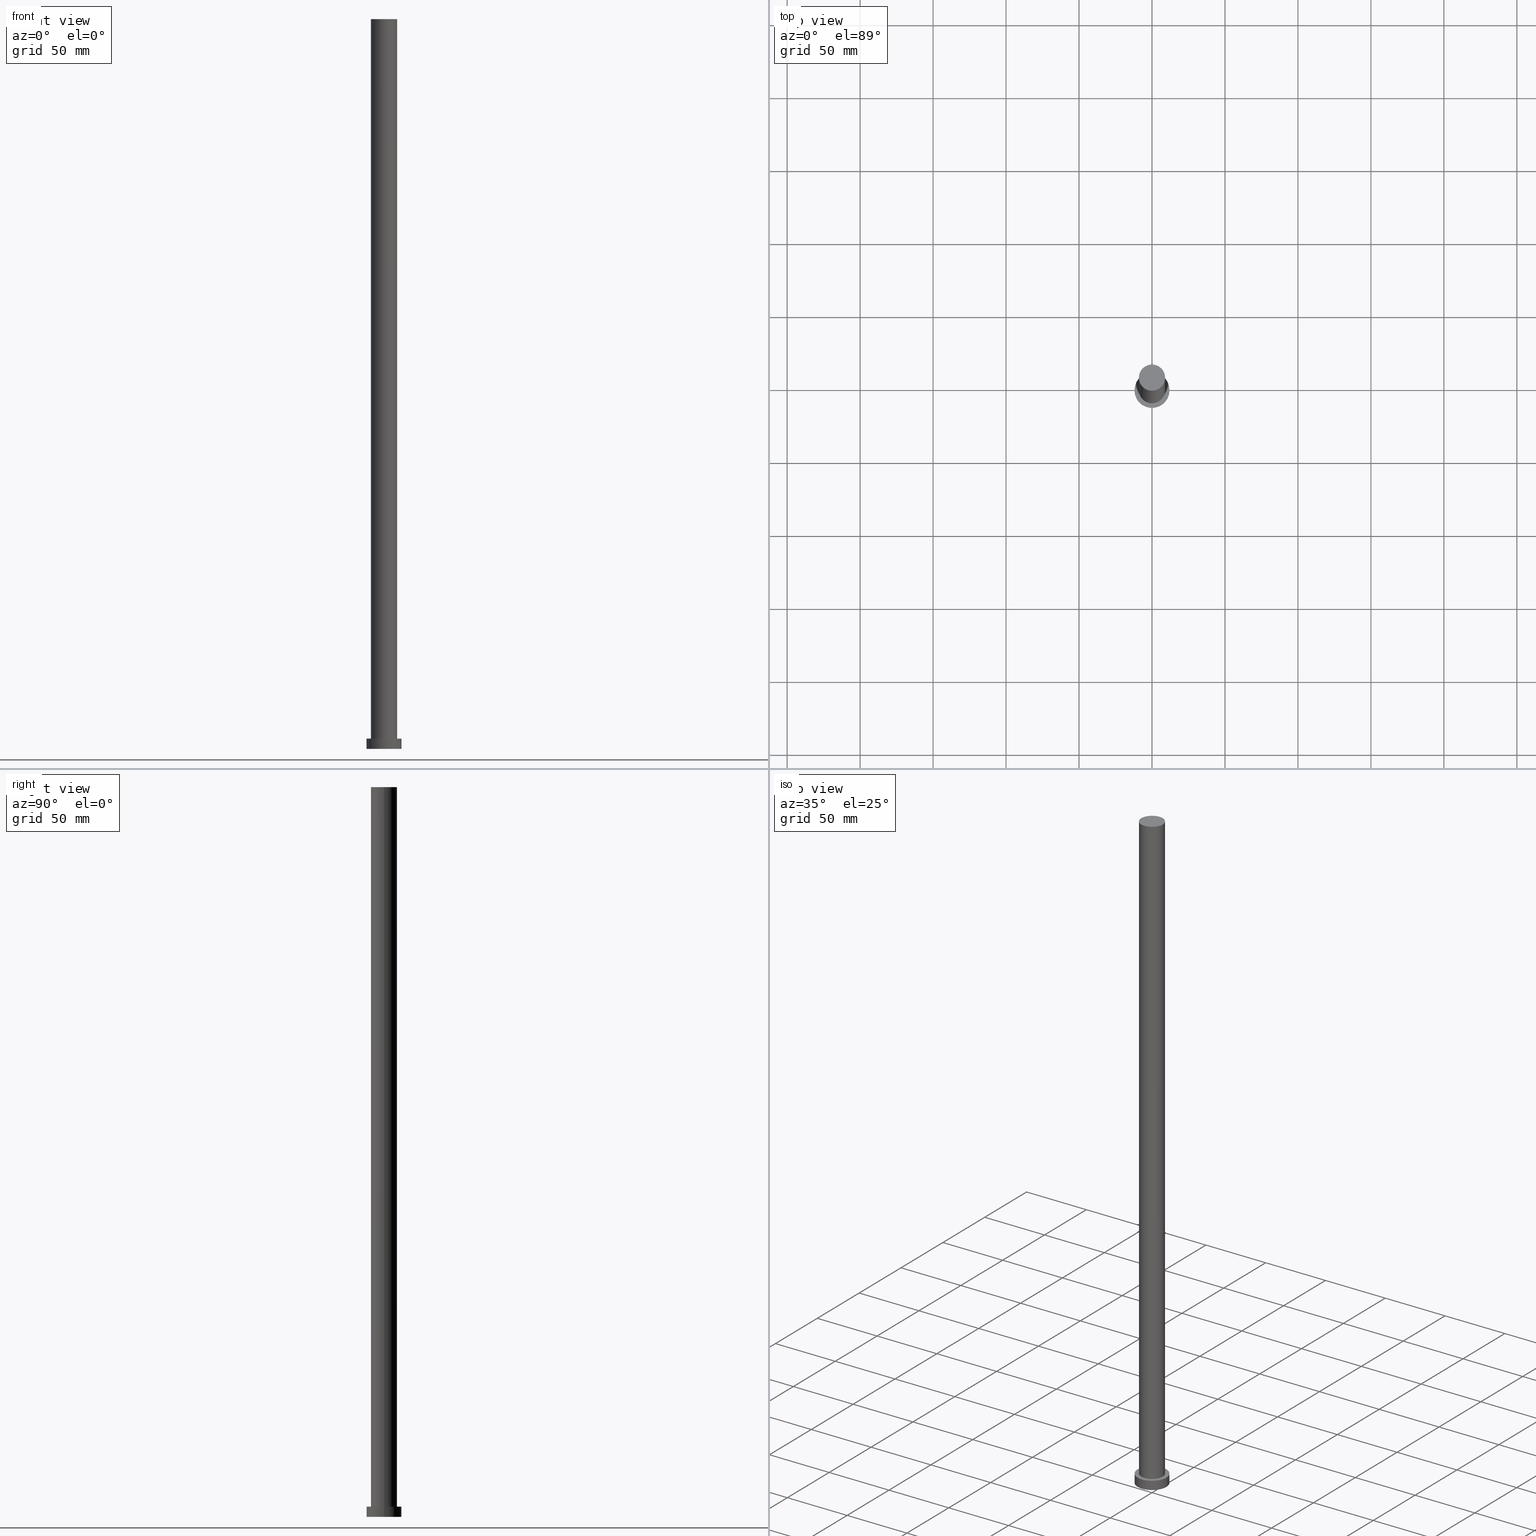
[diagram: canonical four-view strip — front | top / right | iso, engineering-drawing reading convention]
A machine part, canonical four-view strip (front | top / right | iso — engineering-drawing reading convention). The complete STEP part file that produces these views, byte-faithful:
ISO-10303-21;
HEADER;
FILE_DESCRIPTION (( 'STEP AP203' ),
    '1' );
FILE_NAME ('57dd.STEP',
    '2023-02-13T07:55:39',
    ( '' ),
    ( '' ),
    'SwSTEP 2.0',
    'SolidWorks 2019',
    '' );
FILE_SCHEMA (( 'CONFIG_CONTROL_DESIGN' ));
ENDSEC;

DATA;
#1 = APPLICATION_CONTEXT ( 'configuration controlled 3d designs of mechanical parts and assemblies' ) ;
#2 = FACE_OUTER_BOUND ( 'NONE', #119, .T. ) ;
#3 = PRODUCT ( '57dd', '57dd', '', ( #109 ) ) ;
#4 = DIRECTION ( 'NONE',  ( -1.000000000000000000, 0.000000000000000000, 0.000000000000000000 ) ) ;
#5 = DATE_AND_TIME ( #110, #174 ) ;
#6 = SECURITY_CLASSIFICATION_LEVEL ( 'unclassified' ) ;
#7 = VERTEX_POINT ( 'NONE', #83 ) ;
#8 = APPROVAL ( #243, 'NEUR�EN�' ) ;
#9 = COORDINATED_UNIVERSAL_TIME_OFFSET ( 1, 0, .AHEAD. ) ;
#10 = DATE_AND_TIME ( #111, #125 ) ;
#11 = APPROVAL_DATE_TIME ( #130, #246 ) ;
#12 = ORIENTED_EDGE ( 'NONE', *, *, #150, .F. ) ;
#13 = ORIENTED_EDGE ( 'NONE', *, *, #242, .F. ) ;
#14 = FACE_OUTER_BOUND ( 'NONE', #76, .T. ) ;
#15 = ORIENTED_EDGE ( 'NONE', *, *, #95, .T. ) ;
#16 = CIRCLE ( 'NONE', #165, 12.00000000000000178 ) ;
#17 = CARTESIAN_POINT ( 'NONE',  ( 9.000000000000000000, 1.102182119232617714E-15, 500.0000000000000000 ) ) ;
#18 = CARTESIAN_POINT ( 'NONE',  ( 12.00000000000000178, 1.469576158976824144E-15, 7.000000000000000000 ) ) ;
#19 = PRODUCT_DEFINITION_FORMATION_WITH_SPECIFIED_SOURCE ( 'LIBOVOLN�', '', #3, .NOT_KNOWN. ) ;
#20 = DATE_AND_TIME ( #218, #249 ) ;
#21 = EDGE_CURVE ( 'NONE', #49, #158, #234, .T. ) ;
#22 = PRODUCT_DEFINITION_SHAPE ( 'NONE', 'NONE',  #191 ) ;
#23 = DIRECTION ( 'NONE',  ( 0.000000000000000000, 0.000000000000000000, 1.000000000000000000 ) ) ;
#24 = CC_DESIGN_DATE_AND_TIME_ASSIGNMENT ( #226, #87, ( #140 ) ) ;
#25 = APPROVAL_PERSON_ORGANIZATION ( #48, #238, #30 ) ;
#26 = LOCAL_TIME ( 8, 55, 39.00000000000000000, #168 ) ;
#27 = APPLICATION_PROTOCOL_DEFINITION ( 'international standard', 'config_control_design', 1994, #164 ) ;
#28 = EDGE_CURVE ( 'NONE', #97, #158, #102, .T. ) ;
#29 = DIRECTION ( 'NONE',  ( 0.000000000000000000, 0.000000000000000000, 1.000000000000000000 ) ) ;
#30 = APPROVAL_ROLE ( '' ) ;
#31 = APPROVAL_STATUS ( 'not_yet_approved' ) ;
#32 = CC_DESIGN_PERSON_AND_ORGANIZATION_ASSIGNMENT ( #79, #93, ( #19 ) ) ;
#33 = ADVANCED_FACE ( 'NONE', ( #176 ), #98, .T. ) ;
#34 = CIRCLE ( 'NONE', #147, 12.00000000000000178 ) ;
#35 = CARTESIAN_POINT ( 'NONE',  ( 0.000000000000000000, 0.000000000000000000, 500.0000000000000000 ) ) ;
#36 = ORIENTED_EDGE ( 'NONE', *, *, #71, .T. ) ;
#37 = DIRECTION ( 'NONE',  ( 0.000000000000000000, 0.000000000000000000, 1.000000000000000000 ) ) ;
#38 = DIRECTION ( 'NONE',  ( 0.000000000000000000, 0.000000000000000000, 1.000000000000000000 ) ) ;
#39 = VECTOR ( 'NONE', #103, 1000.000000000000000 ) ;
#40 = VERTEX_POINT ( 'NONE', #142 ) ;
#41 = AXIS2_PLACEMENT_3D ( 'NONE', #105, #186, #160 ) ;
#42 = ADVANCED_FACE ( 'NONE', ( #137 ), #154, .T. ) ;
#43 = CARTESIAN_POINT ( 'NONE',  ( 0.000000000000000000, 0.000000000000000000, 0.000000000000000000 ) ) ;
#44 = PLANE ( 'NONE',  #245 ) ;
#45 = VECTOR ( 'NONE', #203, 1000.000000000000000 ) ;
#46 = ORGANIZATION ( 'NEUR�EN�', 'NEUR�EN�', '' ) ;
#47 = DIRECTION ( 'NONE',  ( 1.000000000000000000, 0.000000000000000000, 0.000000000000000000 ) ) ;
#48 = PERSON_AND_ORGANIZATION ( #225, #46 ) ;
#49 = VERTEX_POINT ( 'NONE', #254 ) ;
#50 = FACE_OUTER_BOUND ( 'NONE', #251, .T. ) ;
#51 = CIRCLE ( 'NONE', #204, 9.000000000000000000 ) ;
#52 = APPLICATION_PROTOCOL_DEFINITION ( 'international standard', 'config_control_design', 1994, #1 ) ;
#53 = ADVANCED_BREP_SHAPE_REPRESENTATION ( '57dd', ( #216, #198 ), #182 ) ;
#54 = LOCAL_TIME ( 8, 55, 39.00000000000000000, #9 ) ;
#55 = FACE_OUTER_BOUND ( 'NONE', #114, .T. ) ;
#56 = APPROVAL_ROLE ( '' ) ;
#57 = DIRECTION ( 'NONE',  ( 0.000000000000000000, 0.000000000000000000, 1.000000000000000000 ) ) ;
#58 = ORIENTED_EDGE ( 'NONE', *, *, #229, .T. ) ;
#59 = CARTESIAN_POINT ( 'NONE',  ( 0.000000000000000000, 0.000000000000000000, 7.000000000000000000 ) ) ;
#60 = EDGE_CURVE ( 'NONE', #40, #217, #16, .T. ) ;
#61 = ORIENTED_EDGE ( 'NONE', *, *, #21, .T. ) ;
#62 = CARTESIAN_POINT ( 'NONE',  ( 0.000000000000000000, 0.000000000000000000, 7.000000000000000000 ) ) ;
#63 = CARTESIAN_POINT ( 'NONE',  ( -9.000000000000000000, 0.000000000000000000, 500.0000000000000000 ) ) ;
#64 = CC_DESIGN_APPROVAL ( #238, ( #140 ) ) ;
#65 = ORIENTED_EDGE ( 'NONE', *, *, #190, .F. ) ;
#66 = DIRECTION ( 'NONE',  ( 1.000000000000000000, 0.000000000000000000, 0.000000000000000000 ) ) ;
#67 = AXIS2_PLACEMENT_3D ( 'NONE', #62, #100, #4 ) ;
#68 = APPROVAL_PERSON_ORGANIZATION ( #208, #8, #69 ) ;
#69 = APPROVAL_ROLE ( '' ) ;
#70 = EDGE_CURVE ( 'NONE', #158, #49, #51, .T. ) ;
#71 = EDGE_CURVE ( 'NONE', #217, #40, #149, .T. ) ;
#72 = UNCERTAINTY_MEASURE_WITH_UNIT (LENGTH_MEASURE( 1.000000000000000082E-05 ), #172, 'distance_accuracy_value', 'NONE');
#73 = AXIS2_PLACEMENT_3D ( 'NONE', #132, #235, #221 ) ;
#74 = CC_DESIGN_PERSON_AND_ORGANIZATION_ASSIGNMENT ( #193, #145, ( #140 ) ) ;
#75 = ORIENTED_EDGE ( 'NONE', *, *, #190, .T. ) ;
#76 = EDGE_LOOP ( 'NONE', ( #65, #162, #135, #116 ) ) ;
#77 = ORIENTED_EDGE ( 'NONE', *, *, #70, .F. ) ;
#78 = EDGE_LOOP ( 'NONE', ( #197, #77 ) ) ;
#79 = PERSON_AND_ORGANIZATION ( #225, #46 ) ;
#80 = CARTESIAN_POINT ( 'NONE',  ( 0.000000000000000000, 0.000000000000000000, 7.000000000000000000 ) ) ;
#81 = CIRCLE ( 'NONE', #188, 12.00000000000000178 ) ;
#82 = DIRECTION ( 'NONE',  ( -0.000000000000000000, -0.000000000000000000, -1.000000000000000000 ) ) ;
#83 = CARTESIAN_POINT ( 'NONE',  ( -9.000000000000000000, 0.000000000000000000, 500.0000000000000000 ) ) ;
#84 = AXIS2_PLACEMENT_3D ( 'NONE', #35, #115, #113 ) ;
#85 = PERSON_AND_ORGANIZATION_ROLE ( 'design_owner' ) ;
#86 = ORIENTED_EDGE ( 'NONE', *, *, #28, .T. ) ;
#87 = DATE_TIME_ROLE ( 'classification_date' ) ;
#88 = DESIGN_CONTEXT ( 'detailed design', #164, 'design' ) ;
#89 = PERSON_AND_ORGANIZATION_ROLE ( 'design_supplier' ) ;
#90 = ADVANCED_FACE ( 'NONE', ( #14 ), #215, .T. ) ;
#91 = FACE_BOUND ( 'NONE', #78, .T. ) ;
#92 = DATE_TIME_ROLE ( 'creation_date' ) ;
#93 = PERSON_AND_ORGANIZATION_ROLE ( 'creator' ) ;
#94 = CARTESIAN_POINT ( 'NONE',  ( 0.000000000000000000, 0.000000000000000000, 7.000000000000000000 ) ) ;
#95 = EDGE_CURVE ( 'NONE', #201, #171, #34, .T. ) ;
#96 = CARTESIAN_POINT ( 'NONE',  ( 0.000000000000000000, 0.000000000000000000, 500.0000000000000000 ) ) ;
#97 = VERTEX_POINT ( 'NONE', #133 ) ;
#98 = CYLINDRICAL_SURFACE ( 'NONE', #67, 12.00000000000000178 ) ;
#99 = ORIENTED_EDGE ( 'NONE', *, *, #242, .T. ) ;
#100 = DIRECTION ( 'NONE',  ( -0.000000000000000000, -0.000000000000000000, -1.000000000000000000 ) ) ;
#101 = AXIS2_PLACEMENT_3D ( 'NONE', #94, #163, #117 ) ;
#102 = LINE ( 'NONE', #17, #45 ) ;
#103 = DIRECTION ( 'NONE',  ( -0.000000000000000000, -0.000000000000000000, -1.000000000000000000 ) ) ;
#104 = CC_DESIGN_APPROVAL ( #8, ( #191 ) ) ;
#105 = CARTESIAN_POINT ( 'NONE',  ( 0.000000000000000000, 0.000000000000000000, 7.000000000000000000 ) ) ;
#106 = CC_DESIGN_PERSON_AND_ORGANIZATION_ASSIGNMENT ( #192, #85, ( #3 ) ) ;
#107 = APPROVAL_DATE_TIME ( #5, #238 ) ;
#108 = CIRCLE ( 'NONE', #169, 9.000000000000000000 ) ;
#109 = MECHANICAL_CONTEXT ( 'NONE', #1, 'mechanical' ) ;
#110 = CALENDAR_DATE ( 2023, 13, 2 ) ;
#111 = CALENDAR_DATE ( 2023, 13, 2 ) ;
#112 = CARTESIAN_POINT ( 'NONE',  ( 0.000000000000000000, 0.000000000000000000, 7.000000000000000000 ) ) ;
#113 = DIRECTION ( 'NONE',  ( 1.000000000000000000, 0.000000000000000000, 0.000000000000000000 ) ) ;
#114 = EDGE_LOOP ( 'NONE', ( #13, #86, #230, #181 ) ) ;
#115 = DIRECTION ( 'NONE',  ( 0.000000000000000000, 0.000000000000000000, 1.000000000000000000 ) ) ;
#116 = ORIENTED_EDGE ( 'NONE', *, *, #167, .T. ) ;
#117 = DIRECTION ( 'NONE',  ( 1.000000000000000000, 0.000000000000000000, 0.000000000000000000 ) ) ;
#118 = LINE ( 'NONE', #237, #39 ) ;
#119 = EDGE_LOOP ( 'NONE', ( #58, #99 ) ) ;
#120 = DIRECTION ( 'NONE',  ( 0.000000000000000000, 0.000000000000000000, 1.000000000000000000 ) ) ;
#121 = CC_DESIGN_PERSON_AND_ORGANIZATION_ASSIGNMENT ( #175, #89, ( #19 ) ) ;
#122 = LINE ( 'NONE', #63, #194 ) ;
#123 = DIRECTION ( 'NONE',  ( 1.000000000000000000, 0.000000000000000000, 0.000000000000000000 ) ) ;
#124 = CARTESIAN_POINT ( 'NONE',  ( 0.000000000000000000, 0.000000000000000000, 7.000000000000000000 ) ) ;
#125 = LOCAL_TIME ( 8, 55, 39.00000000000000000, #170 ) ;
#126 = CARTESIAN_POINT ( 'NONE',  ( 0.000000000000000000, 0.000000000000000000, 500.0000000000000000 ) ) ;
#127 = CALENDAR_DATE ( 2023, 13, 2 ) ;
#128 = DIRECTION ( 'NONE',  ( -1.000000000000000000, 0.000000000000000000, 0.000000000000000000 ) ) ;
#129 = ORIENTED_EDGE ( 'NONE', *, *, #212, .T. ) ;
#130 = DATE_AND_TIME ( #127, #54 ) ;
#131 = CARTESIAN_POINT ( 'NONE',  ( 0.000000000000000000, 0.000000000000000000, 0.000000000000000000 ) ) ;
#132 = CARTESIAN_POINT ( 'NONE',  ( 0.000000000000000000, 0.000000000000000000, 500.0000000000000000 ) ) ;
#133 = CARTESIAN_POINT ( 'NONE',  ( 9.000000000000000000, 1.102182119232617714E-15, 500.0000000000000000 ) ) ;
#134 = CYLINDRICAL_SURFACE ( 'NONE', #209, 9.000000000000000000 ) ;
#135 = ORIENTED_EDGE ( 'NONE', *, *, #150, .T. ) ;
#136 = VECTOR ( 'NONE', #82, 1000.000000000000000 ) ;
#137 = FACE_OUTER_BOUND ( 'NONE', #173, .T. ) ;
#138 = CARTESIAN_POINT ( 'NONE',  ( 12.00000000000000178, 1.469576158976824144E-15, 0.000000000000000000 ) ) ;
#139 = DIRECTION ( 'NONE',  ( -0.000000000000000000, -0.000000000000000000, -1.000000000000000000 ) ) ;
#140 = SECURITY_CLASSIFICATION ( '', '', #6 ) ;
#141 = APPROVAL_DATE_TIME ( #20, #8 ) ;
#142 = CARTESIAN_POINT ( 'NONE',  ( 12.00000000000000178, 1.469576158976824144E-15, 7.000000000000000000 ) ) ;
#143 =( NAMED_UNIT ( * ) PLANE_ANGLE_UNIT ( ) SI_UNIT ( $, .RADIAN. ) );
#144 = DIRECTION ( 'NONE',  ( 1.000000000000000000, 0.000000000000000000, -0.000000000000000000 ) ) ;
#145 = PERSON_AND_ORGANIZATION_ROLE ( 'classification_officer' ) ;
#146 = CALENDAR_DATE ( 2023, 13, 2 ) ;
#147 = AXIS2_PLACEMENT_3D ( 'NONE', #202, #57, #123 ) ;
#148 = COORDINATED_UNIVERSAL_TIME_OFFSET ( 1, 0, .AHEAD. ) ;
#149 = CIRCLE ( 'NONE', #253, 12.00000000000000178 ) ;
#150 = EDGE_CURVE ( 'NONE', #217, #171, #118, .T. ) ;
#151 = DIRECTION ( 'NONE',  ( 0.000000000000000000, 0.000000000000000000, 1.000000000000000000 ) ) ;
#152 = ORIENTED_EDGE ( 'NONE', *, *, #60, .F. ) ;
#153 = CARTESIAN_POINT ( 'NONE',  ( 0.000000000000000000, 0.000000000000000000, 500.0000000000000000 ) ) ;
#154 = CYLINDRICAL_SURFACE ( 'NONE', #73, 9.000000000000000000 ) ;
#155 = EDGE_LOOP ( 'NONE', ( #36, #200 ) ) ;
#156 = FACE_OUTER_BOUND ( 'NONE', #155, .T. ) ;
#157 = DIRECTION ( 'NONE',  ( 1.000000000000000000, 0.000000000000000000, -0.000000000000000000 ) ) ;
#158 = VERTEX_POINT ( 'NONE', #184 ) ;
#159 = DIRECTION ( 'NONE',  ( 1.000000000000000000, 0.000000000000000000, 0.000000000000000000 ) ) ;
#160 = DIRECTION ( 'NONE',  ( -1.000000000000000000, 0.000000000000000000, 0.000000000000000000 ) ) ;
#161 = PRODUCT_RELATED_PRODUCT_CATEGORY ( 'detail', '', ( #3 ) ) ;
#162 = ORIENTED_EDGE ( 'NONE', *, *, #71, .F. ) ;
#163 = DIRECTION ( 'NONE',  ( 0.000000000000000000, 0.000000000000000000, 1.000000000000000000 ) ) ;
#164 = APPLICATION_CONTEXT ( 'configuration controlled 3d designs of mechanical parts and assemblies' ) ;
#165 = AXIS2_PLACEMENT_3D ( 'NONE', #80, #38, #159 ) ;
#166 = APPROVAL_PERSON_ORGANIZATION ( #177, #246, #56 ) ;
#167 = EDGE_CURVE ( 'NONE', #171, #201, #81, .T. ) ;
#168 = COORDINATED_UNIVERSAL_TIME_OFFSET ( 1, 0, .AHEAD. ) ;
#169 = AXIS2_PLACEMENT_3D ( 'NONE', #96, #250, #211 ) ;
#170 = COORDINATED_UNIVERSAL_TIME_OFFSET ( 1, 0, .AHEAD. ) ;
#171 = VERTEX_POINT ( 'NONE', #205 ) ;
#172 =( LENGTH_UNIT ( ) NAMED_UNIT ( * ) SI_UNIT ( .MILLI., .METRE. ) );
#173 = EDGE_LOOP ( 'NONE', ( #179, #214, #129, #61 ) ) ;
#174 = LOCAL_TIME ( 8, 55, 39.00000000000000000, #148 ) ;
#175 = PERSON_AND_ORGANIZATION ( #225, #46 ) ;
#176 = FACE_OUTER_BOUND ( 'NONE', #185, .T. ) ;
#177 = PERSON_AND_ORGANIZATION ( #225, #46 ) ;
#178 = CARTESIAN_POINT ( 'NONE',  ( -12.00000000000000178, 0.000000000000000000, 7.000000000000000000 ) ) ;
#179 = ORIENTED_EDGE ( 'NONE', *, *, #28, .F. ) ;
#180 = CLOSED_SHELL ( 'NONE', ( #239, #33, #90, #232, #228, #42, #227 ) ) ;
#181 = ORIENTED_EDGE ( 'NONE', *, *, #212, .F. ) ;
#182 =( GEOMETRIC_REPRESENTATION_CONTEXT ( 3 ) GLOBAL_UNCERTAINTY_ASSIGNED_CONTEXT ( ( #72 ) ) GLOBAL_UNIT_ASSIGNED_CONTEXT ( ( #172, #143, #196 ) ) REPRESENTATION_CONTEXT ( 'NONE', 'WORKASPACE' ) );
#183 = LINE ( 'NONE', #18, #136 ) ;
#184 = CARTESIAN_POINT ( 'NONE',  ( 9.000000000000000000, 1.102182119232617714E-15, 7.000000000000000000 ) ) ;
#185 = EDGE_LOOP ( 'NONE', ( #152, #75, #15, #12 ) ) ;
#186 = DIRECTION ( 'NONE',  ( -0.000000000000000000, -0.000000000000000000, -1.000000000000000000 ) ) ;
#187 = PERSON_AND_ORGANIZATION ( #225, #46 ) ;
#188 = AXIS2_PLACEMENT_3D ( 'NONE', #43, #120, #240 ) ;
#189 = SHAPE_DEFINITION_REPRESENTATION ( #22, #53 ) ;
#190 = EDGE_CURVE ( 'NONE', #40, #201, #183, .T. ) ;
#191 = PRODUCT_DEFINITION ( 'NEZN�M�', '', #19, #88 ) ;
#192 = PERSON_AND_ORGANIZATION ( #225, #46 ) ;
#193 = PERSON_AND_ORGANIZATION ( #225, #46 ) ;
#194 = VECTOR ( 'NONE', #139, 1000.000000000000000 ) ;
#195 = CARTESIAN_POINT ( 'NONE',  ( 0.000000000000000000, 0.000000000000000000, 0.000000000000000000 ) ) ;
#196 =( NAMED_UNIT ( * ) SI_UNIT ( $, .STERADIAN. ) SOLID_ANGLE_UNIT ( ) );
#197 = ORIENTED_EDGE ( 'NONE', *, *, #21, .F. ) ;
#198 = AXIS2_PLACEMENT_3D ( 'NONE', #195, #29, #47 ) ;
#199 = DIRECTION ( 'NONE',  ( 1.000000000000000000, 0.000000000000000000, -0.000000000000000000 ) ) ;
#200 = ORIENTED_EDGE ( 'NONE', *, *, #60, .T. ) ;
#201 = VERTEX_POINT ( 'NONE', #138 ) ;
#202 = CARTESIAN_POINT ( 'NONE',  ( 0.000000000000000000, 0.000000000000000000, 0.000000000000000000 ) ) ;
#203 = DIRECTION ( 'NONE',  ( -0.000000000000000000, -0.000000000000000000, -1.000000000000000000 ) ) ;
#204 = AXIS2_PLACEMENT_3D ( 'NONE', #59, #241, #66 ) ;
#205 = CARTESIAN_POINT ( 'NONE',  ( -12.00000000000000178, 0.000000000000000000, 0.000000000000000000 ) ) ;
#206 = DIRECTION ( 'NONE',  ( 0.000000000000000000, 0.000000000000000000, 1.000000000000000000 ) ) ;
#207 = AXIS2_PLACEMENT_3D ( 'NONE', #112, #151, #199 ) ;
#208 = PERSON_AND_ORGANIZATION ( #225, #46 ) ;
#209 = AXIS2_PLACEMENT_3D ( 'NONE', #126, #213, #128 ) ;
#210 = APPROVAL_STATUS ( 'not_yet_approved' ) ;
#211 = DIRECTION ( 'NONE',  ( 1.000000000000000000, 0.000000000000000000, 0.000000000000000000 ) ) ;
#212 = EDGE_CURVE ( 'NONE', #7, #49, #122, .T. ) ;
#213 = DIRECTION ( 'NONE',  ( -0.000000000000000000, -0.000000000000000000, -1.000000000000000000 ) ) ;
#214 = ORIENTED_EDGE ( 'NONE', *, *, #229, .F. ) ;
#215 = CYLINDRICAL_SURFACE ( 'NONE', #41, 12.00000000000000178 ) ;
#216 = MANIFOLD_SOLID_BREP ( 'P�idat vysunut�m3', #180 ) ;
#217 = VERTEX_POINT ( 'NONE', #178 ) ;
#218 = CALENDAR_DATE ( 2023, 13, 2 ) ;
#219 = CC_DESIGN_APPROVAL ( #246, ( #19 ) ) ;
#220 = CC_DESIGN_DATE_AND_TIME_ASSIGNMENT ( #10, #92, ( #191 ) ) ;
#221 = DIRECTION ( 'NONE',  ( -1.000000000000000000, 0.000000000000000000, 0.000000000000000000 ) ) ;
#222 = CC_DESIGN_PERSON_AND_ORGANIZATION_ASSIGNMENT ( #187, #248, ( #191 ) ) ;
#223 = CC_DESIGN_SECURITY_CLASSIFICATION ( #140, ( #19 ) ) ;
#224 = COORDINATED_UNIVERSAL_TIME_OFFSET ( 1, 0, .AHEAD. ) ;
#225 = PERSON ( 'NEUR�EN�', 'NEUR�EN�', 'NEUR�EN�', ('NEUR�EN�'), ('NEUR�EN�'), ('NEUR�EN�') ) ;
#226 = DATE_AND_TIME ( #146, #26 ) ;
#227 = ADVANCED_FACE ( 'NONE', ( #2 ), #231, .T. ) ;
#228 = ADVANCED_FACE ( 'NONE', ( #50 ), #44, .F. ) ;
#229 = EDGE_CURVE ( 'NONE', #7, #97, #108, .T. ) ;
#230 = ORIENTED_EDGE ( 'NONE', *, *, #70, .T. ) ;
#231 = PLANE ( 'NONE',  #255 ) ;
#232 = ADVANCED_FACE ( 'NONE', ( #91, #156 ), #252, .T. ) ;
#233 = ORIENTED_EDGE ( 'NONE', *, *, #95, .F. ) ;
#234 = CIRCLE ( 'NONE', #101, 9.000000000000000000 ) ;
#235 = DIRECTION ( 'NONE',  ( -0.000000000000000000, -0.000000000000000000, -1.000000000000000000 ) ) ;
#236 = CIRCLE ( 'NONE', #84, 9.000000000000000000 ) ;
#237 = CARTESIAN_POINT ( 'NONE',  ( -12.00000000000000178, 0.000000000000000000, 7.000000000000000000 ) ) ;
#238 = APPROVAL ( #210, 'NEUR�EN�' ) ;
#239 = ADVANCED_FACE ( 'NONE', ( #55 ), #134, .T. ) ;
#240 = DIRECTION ( 'NONE',  ( 1.000000000000000000, 0.000000000000000000, 0.000000000000000000 ) ) ;
#241 = DIRECTION ( 'NONE',  ( 0.000000000000000000, 0.000000000000000000, 1.000000000000000000 ) ) ;
#242 = EDGE_CURVE ( 'NONE', #97, #7, #236, .T. ) ;
#243 = APPROVAL_STATUS ( 'not_yet_approved' ) ;
#244 = DIRECTION ( 'NONE',  ( 1.000000000000000000, 0.000000000000000000, 0.000000000000000000 ) ) ;
#245 = AXIS2_PLACEMENT_3D ( 'NONE', #131, #206, #157 ) ;
#246 = APPROVAL ( #31, 'NEUR�EN�' ) ;
#247 = ORIENTED_EDGE ( 'NONE', *, *, #167, .F. ) ;
#248 = PERSON_AND_ORGANIZATION_ROLE ( 'creator' ) ;
#249 = LOCAL_TIME ( 8, 55, 39.00000000000000000, #224 ) ;
#250 = DIRECTION ( 'NONE',  ( 0.000000000000000000, 0.000000000000000000, 1.000000000000000000 ) ) ;
#251 = EDGE_LOOP ( 'NONE', ( #247, #233 ) ) ;
#252 = PLANE ( 'NONE',  #207 ) ;
#253 = AXIS2_PLACEMENT_3D ( 'NONE', #124, #23, #244 ) ;
#254 = CARTESIAN_POINT ( 'NONE',  ( -9.000000000000000000, 0.000000000000000000, 7.000000000000000000 ) ) ;
#255 = AXIS2_PLACEMENT_3D ( 'NONE', #153, #37, #144 ) ;
ENDSEC;
END-ISO-10303-21;
